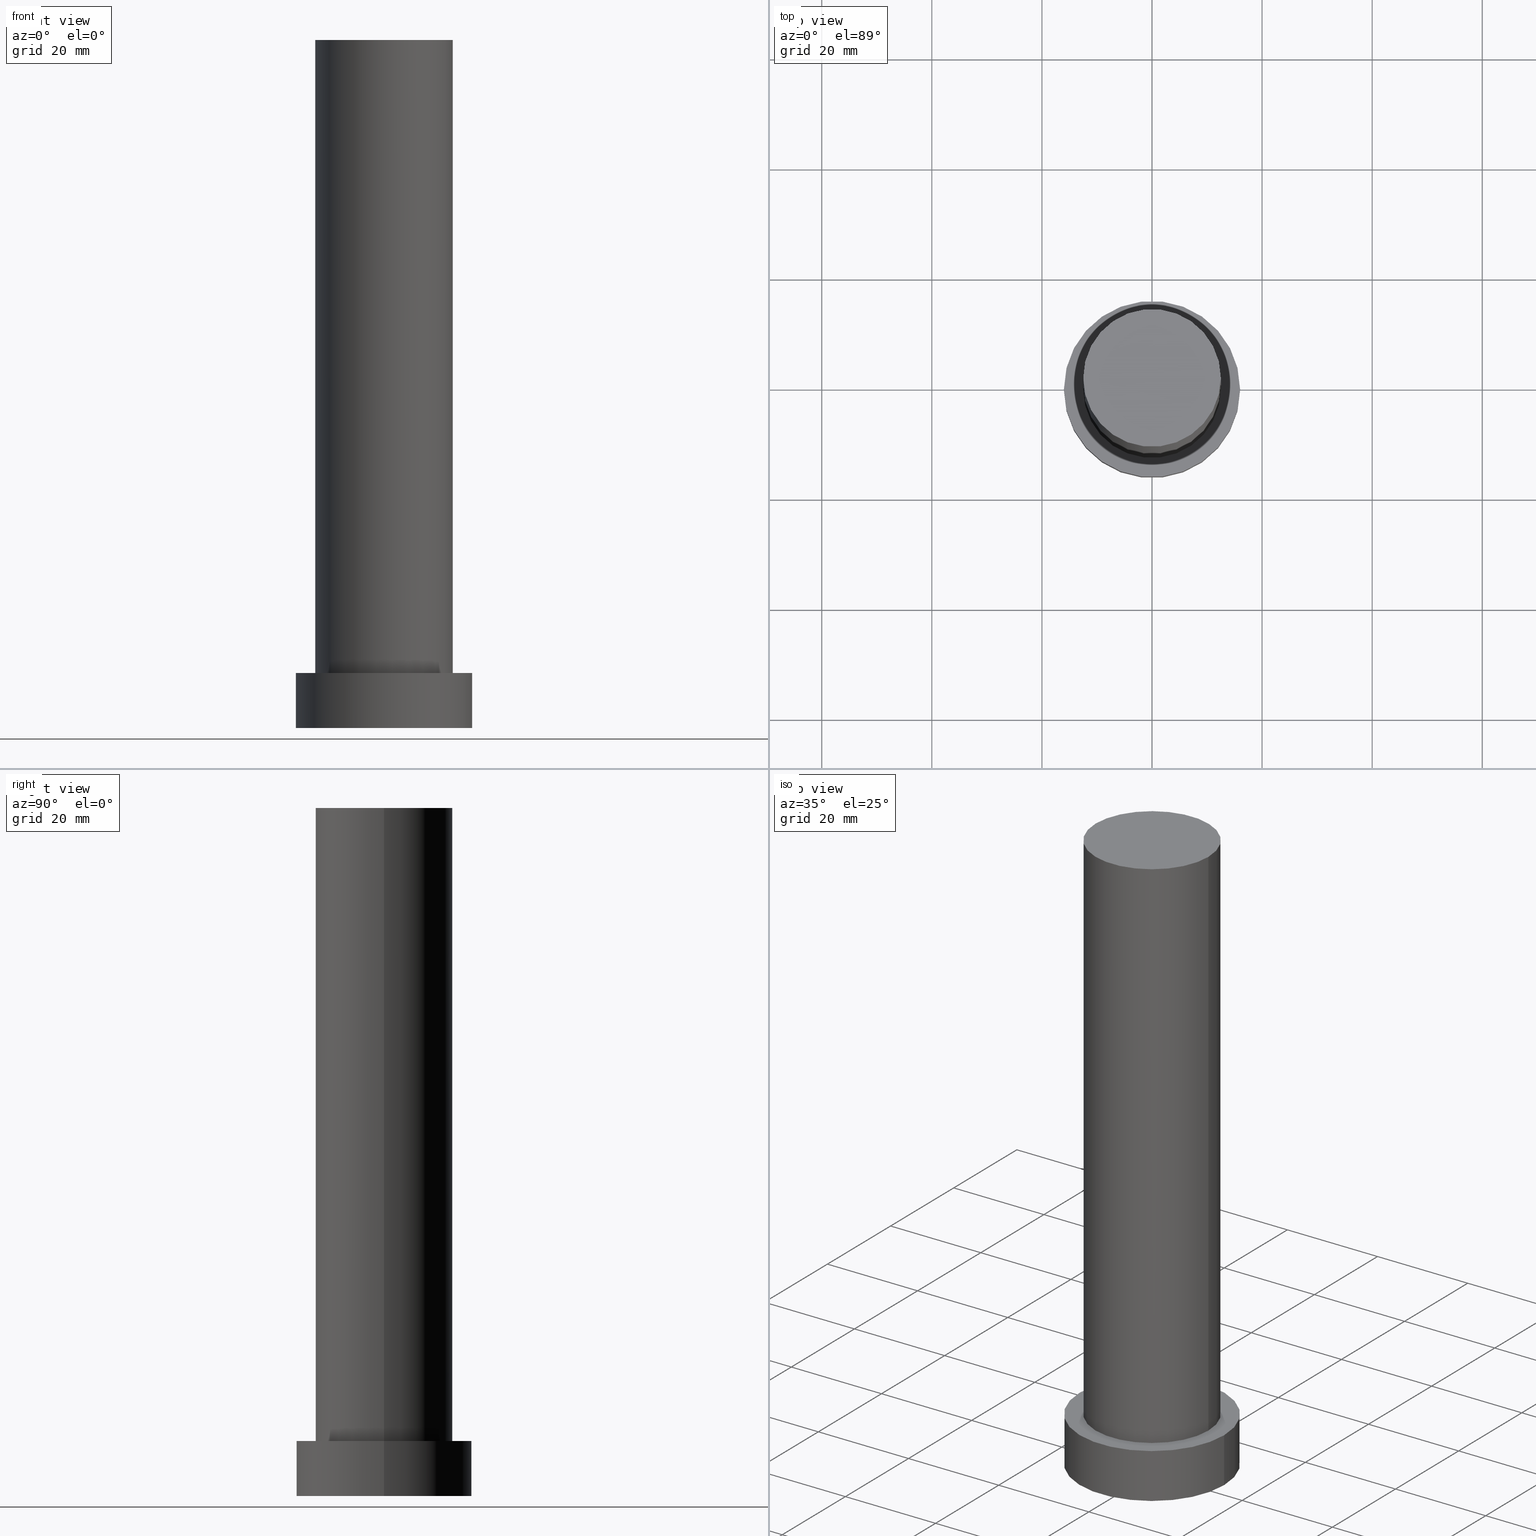
[diagram: canonical four-view strip — front | top / right | iso, engineering-drawing reading convention]
A machine part, canonical four-view strip (front | top / right | iso — engineering-drawing reading convention). The complete STEP part file that produces these views, byte-faithful:
ISO-10303-21;
HEADER;
FILE_DESCRIPTION (( 'STEP AP203' ),
    '1' );
FILE_NAME ('cd83.STEP',
    '2026-02-06T12:35:20',
    ( '' ),
    ( '' ),
    'SwSTEP 2.0',
    'SolidWorks 2019',
    '' );
FILE_SCHEMA (( 'CONFIG_CONTROL_DESIGN' ));
ENDSEC;

DATA;
#1 = PERSON_AND_ORGANIZATION_ROLE ( 'creator' ) ;
#2 = DIRECTION ( 'NONE',  ( -0.000000000000000000, -0.000000000000000000, -1.000000000000000000 ) ) ;
#3 = VECTOR ( 'NONE', #163, 1000.000000000000000 ) ;
#4 = APPROVAL_STATUS ( 'not_yet_approved' ) ;
#5 = EDGE_CURVE ( 'NONE', #189, #245, #173, .T. ) ;
#6 = EDGE_CURVE ( 'NONE', #225, #93, #152, .T. ) ;
#7 = AXIS2_PLACEMENT_3D ( 'NONE', #226, #147, #50 ) ;
#8 = CARTESIAN_POINT ( 'NONE',  ( 0.000000000000000000, 0.000000000000000000, 10.00000000000000000 ) ) ;
#9 = FACE_BOUND ( 'NONE', #143, .T. ) ;
#10 = ORIENTED_EDGE ( 'NONE', *, *, #6, .T. ) ;
#11 = AXIS2_PLACEMENT_3D ( 'NONE', #48, #129, #70 ) ;
#12 = DIRECTION ( 'NONE',  ( -0.000000000000000000, -0.000000000000000000, -1.000000000000000000 ) ) ;
#13 = ADVANCED_FACE ( 'NONE', ( #228 ), #123, .T. ) ;
#14 = EDGE_LOOP ( 'NONE', ( #244, #33, #169, #10 ) ) ;
#15 = ORIENTED_EDGE ( 'NONE', *, *, #67, .T. ) ;
#16 = CARTESIAN_POINT ( 'NONE',  ( 12.50000000000000000, 1.530808498934191521E-15, 10.00000000000000000 ) ) ;
#17 = APPROVAL_DATE_TIME ( #35, #107 ) ;
#18 = CARTESIAN_POINT ( 'NONE',  ( 16.00000000000000000, 1.959434878635765131E-15, 10.00000000000000000 ) ) ;
#19 = PERSON_AND_ORGANIZATION_ROLE ( 'classification_officer' ) ;
#20 = DIRECTION ( 'NONE',  ( 1.000000000000000000, 0.000000000000000000, 0.000000000000000000 ) ) ;
#21 = LOCAL_TIME ( 13, 35, 20.00000000000000000, #235 ) ;
#22 = APPROVAL ( #38, 'NEUR�EN�' ) ;
#23 = DIRECTION ( 'NONE',  ( 0.000000000000000000, 0.000000000000000000, 1.000000000000000000 ) ) ;
#24 = CC_DESIGN_PERSON_AND_ORGANIZATION_ASSIGNMENT ( #44, #197, ( #65 ) ) ;
#25 = CIRCLE ( 'NONE', #116, 12.50000000000000000 ) ;
#26 = CARTESIAN_POINT ( 'NONE',  ( 0.000000000000000000, 0.000000000000000000, 10.00000000000000000 ) ) ;
#27 = DIRECTION ( 'NONE',  ( 1.000000000000000000, 0.000000000000000000, 0.000000000000000000 ) ) ;
#28 = DIRECTION ( 'NONE',  ( 1.000000000000000000, 0.000000000000000000, 0.000000000000000000 ) ) ;
#29 = ORIENTED_EDGE ( 'NONE', *, *, #96, .F. ) ;
#30 = AXIS2_PLACEMENT_3D ( 'NONE', #53, #194, #34 ) ;
#31 = VERTEX_POINT ( 'NONE', #204 ) ;
#32 = ADVANCED_FACE ( 'NONE', ( #9, #88 ), #86, .T. ) ;
#33 = ORIENTED_EDGE ( 'NONE', *, *, #105, .F. ) ;
#34 = DIRECTION ( 'NONE',  ( 1.000000000000000000, 0.000000000000000000, 0.000000000000000000 ) ) ;
#35 = DATE_AND_TIME ( #54, #21 ) ;
#36 = CALENDAR_DATE ( 2026, 6, 2 ) ;
#37 = DIRECTION ( 'NONE',  ( 0.000000000000000000, 0.000000000000000000, 1.000000000000000000 ) ) ;
#38 = APPROVAL_STATUS ( 'not_yet_approved' ) ;
#39 = COORDINATED_UNIVERSAL_TIME_OFFSET ( 1, 0, .AHEAD. ) ;
#40 = CARTESIAN_POINT ( 'NONE',  ( 0.000000000000000000, 0.000000000000000000, 0.000000000000000000 ) ) ;
#41 = CIRCLE ( 'NONE', #217, 16.00000000000000000 ) ;
#42 = COORDINATED_UNIVERSAL_TIME_OFFSET ( 1, 0, .AHEAD. ) ;
#43 = EDGE_CURVE ( 'NONE', #165, #206, #109, .T. ) ;
#44 = PERSON_AND_ORGANIZATION ( #94, #104 ) ;
#45 =( GEOMETRIC_REPRESENTATION_CONTEXT ( 3 ) GLOBAL_UNCERTAINTY_ASSIGNED_CONTEXT ( ( #119 ) ) GLOBAL_UNIT_ASSIGNED_CONTEXT ( ( #239, #218, #84 ) ) REPRESENTATION_CONTEXT ( 'NONE', 'WORKASPACE' ) );
#46 = DIRECTION ( 'NONE',  ( 0.000000000000000000, 0.000000000000000000, 1.000000000000000000 ) ) ;
#47 = VECTOR ( 'NONE', #213, 1000.000000000000000 ) ;
#48 = CARTESIAN_POINT ( 'NONE',  ( 0.000000000000000000, 0.000000000000000000, 10.00000000000000000 ) ) ;
#49 = EDGE_LOOP ( 'NONE', ( #92, #106 ) ) ;
#50 = DIRECTION ( 'NONE',  ( 1.000000000000000000, 0.000000000000000000, 0.000000000000000000 ) ) ;
#51 = CIRCLE ( 'NONE', #160, 16.00000000000000000 ) ;
#52 = CARTESIAN_POINT ( 'NONE',  ( 0.000000000000000000, 0.000000000000000000, 125.0000000000000000 ) ) ;
#53 = CARTESIAN_POINT ( 'NONE',  ( 0.000000000000000000, 0.000000000000000000, 125.0000000000000000 ) ) ;
#54 = CALENDAR_DATE ( 2026, 6, 2 ) ;
#55 = APPLICATION_CONTEXT ( 'configuration controlled 3d designs of mechanical parts and assemblies' ) ;
#56 = LOCAL_TIME ( 13, 35, 20.00000000000000000, #39 ) ;
#57 = COORDINATED_UNIVERSAL_TIME_OFFSET ( 1, 0, .AHEAD. ) ;
#58 = DATE_AND_TIME ( #251, #231 ) ;
#59 = CARTESIAN_POINT ( 'NONE',  ( 0.000000000000000000, 0.000000000000000000, 125.0000000000000000 ) ) ;
#60 = APPLICATION_PROTOCOL_DEFINITION ( 'international standard', 'config_control_design', 1994, #55 ) ;
#61 = CC_DESIGN_SECURITY_CLASSIFICATION ( #63, ( #168 ) ) ;
#62 = CARTESIAN_POINT ( 'NONE',  ( 16.00000000000000000, 1.959434878635765131E-15, 0.000000000000000000 ) ) ;
#63 = SECURITY_CLASSIFICATION ( '', '', #179 ) ;
#64 = EDGE_CURVE ( 'NONE', #206, #165, #41, .T. ) ;
#65 = PRODUCT ( 'cd83', 'cd83', '', ( #138 ) ) ;
#66 = ORIENTED_EDGE ( 'NONE', *, *, #155, .T. ) ;
#67 = EDGE_CURVE ( 'NONE', #245, #189, #51, .T. ) ;
#68 = DIRECTION ( 'NONE',  ( 0.000000000000000000, 0.000000000000000000, 1.000000000000000000 ) ) ;
#69 = CYLINDRICAL_SURFACE ( 'NONE', #211, 16.00000000000000000 ) ;
#70 = DIRECTION ( 'NONE',  ( 1.000000000000000000, 0.000000000000000000, -0.000000000000000000 ) ) ;
#71 = CARTESIAN_POINT ( 'NONE',  ( -16.00000000000000000, 0.000000000000000000, 10.00000000000000000 ) ) ;
#72 = EDGE_LOOP ( 'NONE', ( #240, #73 ) ) ;
#73 = ORIENTED_EDGE ( 'NONE', *, *, #87, .T. ) ;
#74 = APPROVAL_PERSON_ORGANIZATION ( #117, #22, #136 ) ;
#75 = APPROVAL_STATUS ( 'not_yet_approved' ) ;
#76 = DESIGN_CONTEXT ( 'detailed design', #199, 'design' ) ;
#77 = ADVANCED_FACE ( 'NONE', ( #192 ), #250, .T. ) ;
#78 = CARTESIAN_POINT ( 'NONE',  ( 12.50000000000000000, 1.530808498934191521E-15, 125.0000000000000000 ) ) ;
#79 = AXIS2_PLACEMENT_3D ( 'NONE', #40, #37, #91 ) ;
#80 = DIRECTION ( 'NONE',  ( -0.000000000000000000, -0.000000000000000000, -1.000000000000000000 ) ) ;
#81 = APPROVAL_DATE_TIME ( #58, #22 ) ;
#82 = ADVANCED_FACE ( 'NONE', ( #248 ), #154, .T. ) ;
#83 = PERSON_AND_ORGANIZATION ( #94, #104 ) ;
#84 =( NAMED_UNIT ( * ) SI_UNIT ( $, .STERADIAN. ) SOLID_ANGLE_UNIT ( ) );
#85 = CC_DESIGN_DATE_AND_TIME_ASSIGNMENT ( #151, #232, ( #164 ) ) ;
#86 = PLANE ( 'NONE',  #11 ) ;
#87 = EDGE_CURVE ( 'NONE', #31, #145, #137, .T. ) ;
#88 = FACE_OUTER_BOUND ( 'NONE', #49, .T. ) ;
#89 = AXIS2_PLACEMENT_3D ( 'NONE', #219, #23, #181 ) ;
#90 = DIRECTION ( 'NONE',  ( 1.000000000000000000, 0.000000000000000000, 0.000000000000000000 ) ) ;
#91 = DIRECTION ( 'NONE',  ( 1.000000000000000000, 0.000000000000000000, -0.000000000000000000 ) ) ;
#92 = ORIENTED_EDGE ( 'NONE', *, *, #64, .T. ) ;
#93 = VERTEX_POINT ( 'NONE', #16 ) ;
#94 = PERSON ( 'NEUR�EN�', 'NEUR�EN�', 'NEUR�EN�', ('NEUR�EN�'), ('NEUR�EN�'), ('NEUR�EN�') ) ;
#95 = CARTESIAN_POINT ( 'NONE',  ( 0.000000000000000000, 0.000000000000000000, 125.0000000000000000 ) ) ;
#96 = EDGE_CURVE ( 'NONE', #145, #225, #130, .T. ) ;
#97 = CALENDAR_DATE ( 2026, 6, 2 ) ;
#98 = VECTOR ( 'NONE', #150, 1000.000000000000000 ) ;
#99 = PERSON_AND_ORGANIZATION ( #94, #104 ) ;
#100 = DIRECTION ( 'NONE',  ( -1.000000000000000000, 0.000000000000000000, 0.000000000000000000 ) ) ;
#101 = APPLICATION_PROTOCOL_DEFINITION ( 'international standard', 'config_control_design', 1994, #199 ) ;
#102 = LOCAL_TIME ( 13, 35, 20.00000000000000000, #216 ) ;
#103 = CC_DESIGN_PERSON_AND_ORGANIZATION_ASSIGNMENT ( #254, #19, ( #63 ) ) ;
#104 = ORGANIZATION ( 'NEUR�EN�', 'NEUR�EN�', '' ) ;
#105 = EDGE_CURVE ( 'NONE', #145, #31, #25, .T. ) ;
#106 = ORIENTED_EDGE ( 'NONE', *, *, #43, .T. ) ;
#107 = APPROVAL ( #75, 'NEUR�EN�' ) ;
#108 = EDGE_LOOP ( 'NONE', ( #202, #66, #15, #187 ) ) ;
#109 = CIRCLE ( 'NONE', #140, 16.00000000000000000 ) ;
#110 = DIRECTION ( 'NONE',  ( 0.000000000000000000, 0.000000000000000000, 1.000000000000000000 ) ) ;
#111 = CC_DESIGN_PERSON_AND_ORGANIZATION_ASSIGNMENT ( #99, #1, ( #164 ) ) ;
#112 = EDGE_LOOP ( 'NONE', ( #146, #208, #238, #29 ) ) ;
#113 = ORIENTED_EDGE ( 'NONE', *, *, #6, .F. ) ;
#114 = DATE_AND_TIME ( #97, #56 ) ;
#115 = CC_DESIGN_APPROVAL ( #139, ( #164 ) ) ;
#116 = AXIS2_PLACEMENT_3D ( 'NONE', #95, #174, #149 ) ;
#117 = PERSON_AND_ORGANIZATION ( #94, #104 ) ;
#118 = PERSON_AND_ORGANIZATION_ROLE ( 'creator' ) ;
#119 = UNCERTAINTY_MEASURE_WITH_UNIT (LENGTH_MEASURE( 1.000000000000000082E-05 ), #239, 'distance_accuracy_value', 'NONE');
#120 = CC_DESIGN_PERSON_AND_ORGANIZATION_ASSIGNMENT ( #83, #214, ( #168 ) ) ;
#121 = CC_DESIGN_APPROVAL ( #107, ( #63 ) ) ;
#122 = DIRECTION ( 'NONE',  ( 0.000000000000000000, 0.000000000000000000, 1.000000000000000000 ) ) ;
#123 = PLANE ( 'NONE',  #252 ) ;
#124 = DIRECTION ( 'NONE',  ( -0.000000000000000000, -0.000000000000000000, -1.000000000000000000 ) ) ;
#125 = EDGE_LOOP ( 'NONE', ( #190, #141 ) ) ;
#126 = EDGE_CURVE ( 'NONE', #31, #93, #234, .T. ) ;
#127 = APPROVAL_PERSON_ORGANIZATION ( #177, #107, #253 ) ;
#128 = ORIENTED_EDGE ( 'NONE', *, *, #64, .F. ) ;
#129 = DIRECTION ( 'NONE',  ( 0.000000000000000000, 0.000000000000000000, 1.000000000000000000 ) ) ;
#130 = LINE ( 'NONE', #209, #47 ) ;
#131 = DIRECTION ( 'NONE',  ( -1.000000000000000000, 0.000000000000000000, 0.000000000000000000 ) ) ;
#132 = APPROVAL_ROLE ( '' ) ;
#133 = APPROVAL_PERSON_ORGANIZATION ( #182, #139, #132 ) ;
#134 = LINE ( 'NONE', #18, #242 ) ;
#135 = DIRECTION ( 'NONE',  ( 0.000000000000000000, 0.000000000000000000, 1.000000000000000000 ) ) ;
#136 = APPROVAL_ROLE ( '' ) ;
#137 = CIRCLE ( 'NONE', #30, 12.50000000000000000 ) ;
#138 = MECHANICAL_CONTEXT ( 'NONE', #55, 'mechanical' ) ;
#139 = APPROVAL ( #4, 'NEUR�EN�' ) ;
#140 = AXIS2_PLACEMENT_3D ( 'NONE', #200, #110, #27 ) ;
#141 = ORIENTED_EDGE ( 'NONE', *, *, #67, .F. ) ;
#142 = CLOSED_SHELL ( 'NONE', ( #82, #255, #207, #32, #172, #77, #13 ) ) ;
#143 = EDGE_LOOP ( 'NONE', ( #113, #170 ) ) ;
#144 = CARTESIAN_POINT ( 'NONE',  ( 0.000000000000000000, 0.000000000000000000, 10.00000000000000000 ) ) ;
#145 = VERTEX_POINT ( 'NONE', #212 ) ;
#146 = ORIENTED_EDGE ( 'NONE', *, *, #87, .F. ) ;
#147 = DIRECTION ( 'NONE',  ( 0.000000000000000000, 0.000000000000000000, 1.000000000000000000 ) ) ;
#148 = DIRECTION ( 'NONE',  ( -0.000000000000000000, -0.000000000000000000, -1.000000000000000000 ) ) ;
#149 = DIRECTION ( 'NONE',  ( 1.000000000000000000, 0.000000000000000000, 0.000000000000000000 ) ) ;
#150 = DIRECTION ( 'NONE',  ( -0.000000000000000000, -0.000000000000000000, -1.000000000000000000 ) ) ;
#151 = DATE_AND_TIME ( #193, #102 ) ;
#152 = CIRCLE ( 'NONE', #7, 12.50000000000000000 ) ;
#153 = CARTESIAN_POINT ( 'NONE',  ( -16.00000000000000000, 0.000000000000000000, 0.000000000000000000 ) ) ;
#154 = CYLINDRICAL_SURFACE ( 'NONE', #223, 12.50000000000000000 ) ;
#155 = EDGE_CURVE ( 'NONE', #165, #245, #134, .T. ) ;
#156 = LINE ( 'NONE', #159, #3 ) ;
#157 = PRODUCT_RELATED_PRODUCT_CATEGORY ( 'detail', '', ( #65 ) ) ;
#158 = DATE_TIME_ROLE ( 'classification_date' ) ;
#159 = CARTESIAN_POINT ( 'NONE',  ( -16.00000000000000000, 0.000000000000000000, 10.00000000000000000 ) ) ;
#160 = AXIS2_PLACEMENT_3D ( 'NONE', #241, #68, #175 ) ;
#161 = CARTESIAN_POINT ( 'NONE',  ( -12.50000000000000000, 0.000000000000000000, 10.00000000000000000 ) ) ;
#162 = ORIENTED_EDGE ( 'NONE', *, *, #155, .F. ) ;
#163 = DIRECTION ( 'NONE',  ( -0.000000000000000000, -0.000000000000000000, -1.000000000000000000 ) ) ;
#164 = PRODUCT_DEFINITION ( 'NEZN�M�', '', #168, #76 ) ;
#165 = VERTEX_POINT ( 'NONE', #167 ) ;
#166 = DIRECTION ( 'NONE',  ( 0.000000000000000000, 0.000000000000000000, 1.000000000000000000 ) ) ;
#167 = CARTESIAN_POINT ( 'NONE',  ( 16.00000000000000000, 1.959434878635765131E-15, 10.00000000000000000 ) ) ;
#168 = PRODUCT_DEFINITION_FORMATION_WITH_SPECIFIED_SOURCE ( 'LIBOVOLN�', '', #65, .NOT_KNOWN. ) ;
#169 = ORIENTED_EDGE ( 'NONE', *, *, #96, .T. ) ;
#170 = ORIENTED_EDGE ( 'NONE', *, *, #201, .F. ) ;
#171 = EDGE_LOOP ( 'NONE', ( #162, #128, #222, #186 ) ) ;
#172 = ADVANCED_FACE ( 'NONE', ( #249 ), #176, .F. ) ;
#173 = CIRCLE ( 'NONE', #205, 16.00000000000000000 ) ;
#174 = DIRECTION ( 'NONE',  ( 0.000000000000000000, 0.000000000000000000, 1.000000000000000000 ) ) ;
#175 = DIRECTION ( 'NONE',  ( 1.000000000000000000, 0.000000000000000000, 0.000000000000000000 ) ) ;
#176 = PLANE ( 'NONE',  #79 ) ;
#177 = PERSON_AND_ORGANIZATION ( #94, #104 ) ;
#178 = CC_DESIGN_APPROVAL ( #22, ( #168 ) ) ;
#179 = SECURITY_CLASSIFICATION_LEVEL ( 'unclassified' ) ;
#180 = APPROVAL_DATE_TIME ( #195, #139 ) ;
#181 = DIRECTION ( 'NONE',  ( 1.000000000000000000, 0.000000000000000000, 0.000000000000000000 ) ) ;
#182 = PERSON_AND_ORGANIZATION ( #94, #104 ) ;
#183 = LOCAL_TIME ( 13, 35, 20.00000000000000000, #57 ) ;
#184 = AXIS2_PLACEMENT_3D ( 'NONE', #26, #2, #100 ) ;
#185 = MANIFOLD_SOLID_BREP ( 'P�idat vysunut�m3', #142 ) ;
#186 = ORIENTED_EDGE ( 'NONE', *, *, #5, .T. ) ;
#187 = ORIENTED_EDGE ( 'NONE', *, *, #221, .F. ) ;
#188 = PRODUCT_DEFINITION_SHAPE ( 'NONE', 'NONE',  #164 ) ;
#189 = VERTEX_POINT ( 'NONE', #153 ) ;
#190 = ORIENTED_EDGE ( 'NONE', *, *, #5, .F. ) ;
#191 = AXIS2_PLACEMENT_3D ( 'NONE', #233, #135, #20 ) ;
#192 = FACE_OUTER_BOUND ( 'NONE', #14, .T. ) ;
#193 = CALENDAR_DATE ( 2026, 6, 2 ) ;
#194 = DIRECTION ( 'NONE',  ( 0.000000000000000000, 0.000000000000000000, 1.000000000000000000 ) ) ;
#195 = DATE_AND_TIME ( #36, #183 ) ;
#196 = ADVANCED_BREP_SHAPE_REPRESENTATION ( 'cd83', ( #185, #89 ), #45 ) ;
#197 = PERSON_AND_ORGANIZATION_ROLE ( 'design_owner' ) ;
#198 = CYLINDRICAL_SURFACE ( 'NONE', #184, 16.00000000000000000 ) ;
#199 = APPLICATION_CONTEXT ( 'configuration controlled 3d designs of mechanical parts and assemblies' ) ;
#200 = CARTESIAN_POINT ( 'NONE',  ( 0.000000000000000000, 0.000000000000000000, 10.00000000000000000 ) ) ;
#201 = EDGE_CURVE ( 'NONE', #93, #225, #247, .T. ) ;
#202 = ORIENTED_EDGE ( 'NONE', *, *, #43, .F. ) ;
#203 = DIRECTION ( 'NONE',  ( -1.000000000000000000, 0.000000000000000000, 0.000000000000000000 ) ) ;
#204 = CARTESIAN_POINT ( 'NONE',  ( 12.50000000000000000, 1.530808498934191521E-15, 125.0000000000000000 ) ) ;
#205 = AXIS2_PLACEMENT_3D ( 'NONE', #246, #46, #90 ) ;
#206 = VERTEX_POINT ( 'NONE', #71 ) ;
#207 = ADVANCED_FACE ( 'NONE', ( #243 ), #69, .T. ) ;
#208 = ORIENTED_EDGE ( 'NONE', *, *, #126, .T. ) ;
#209 = CARTESIAN_POINT ( 'NONE',  ( -12.50000000000000000, 0.000000000000000000, 125.0000000000000000 ) ) ;
#210 = PERSON_AND_ORGANIZATION ( #94, #104 ) ;
#211 = AXIS2_PLACEMENT_3D ( 'NONE', #144, #124, #203 ) ;
#212 = CARTESIAN_POINT ( 'NONE',  ( -12.50000000000000000, 0.000000000000000000, 125.0000000000000000 ) ) ;
#213 = DIRECTION ( 'NONE',  ( -0.000000000000000000, -0.000000000000000000, -1.000000000000000000 ) ) ;
#214 = PERSON_AND_ORGANIZATION_ROLE ( 'design_supplier' ) ;
#215 = SHAPE_DEFINITION_REPRESENTATION ( #188, #196 ) ;
#216 = COORDINATED_UNIVERSAL_TIME_OFFSET ( 1, 0, .AHEAD. ) ;
#217 = AXIS2_PLACEMENT_3D ( 'NONE', #8, #166, #28 ) ;
#218 =( NAMED_UNIT ( * ) PLANE_ANGLE_UNIT ( ) SI_UNIT ( $, .RADIAN. ) );
#219 = CARTESIAN_POINT ( 'NONE',  ( 0.000000000000000000, 0.000000000000000000, 0.000000000000000000 ) ) ;
#220 = AXIS2_PLACEMENT_3D ( 'NONE', #236, #80, #131 ) ;
#221 = EDGE_CURVE ( 'NONE', #206, #189, #156, .T. ) ;
#222 = ORIENTED_EDGE ( 'NONE', *, *, #221, .T. ) ;
#223 = AXIS2_PLACEMENT_3D ( 'NONE', #59, #148, #230 ) ;
#224 = DIRECTION ( 'NONE',  ( 1.000000000000000000, 0.000000000000000000, -0.000000000000000000 ) ) ;
#225 = VERTEX_POINT ( 'NONE', #161 ) ;
#226 = CARTESIAN_POINT ( 'NONE',  ( 0.000000000000000000, 0.000000000000000000, 10.00000000000000000 ) ) ;
#227 = CC_DESIGN_PERSON_AND_ORGANIZATION_ASSIGNMENT ( #210, #118, ( #168 ) ) ;
#228 = FACE_OUTER_BOUND ( 'NONE', #72, .T. ) ;
#229 = CC_DESIGN_DATE_AND_TIME_ASSIGNMENT ( #114, #158, ( #63 ) ) ;
#230 = DIRECTION ( 'NONE',  ( -1.000000000000000000, 0.000000000000000000, 0.000000000000000000 ) ) ;
#231 = LOCAL_TIME ( 13, 35, 20.00000000000000000, #42 ) ;
#232 = DATE_TIME_ROLE ( 'creation_date' ) ;
#233 = CARTESIAN_POINT ( 'NONE',  ( 0.000000000000000000, 0.000000000000000000, 10.00000000000000000 ) ) ;
#234 = LINE ( 'NONE', #78, #98 ) ;
#235 = COORDINATED_UNIVERSAL_TIME_OFFSET ( 1, 0, .AHEAD. ) ;
#236 = CARTESIAN_POINT ( 'NONE',  ( 0.000000000000000000, 0.000000000000000000, 125.0000000000000000 ) ) ;
#237 = FACE_OUTER_BOUND ( 'NONE', #108, .T. ) ;
#238 = ORIENTED_EDGE ( 'NONE', *, *, #201, .T. ) ;
#239 =( LENGTH_UNIT ( ) NAMED_UNIT ( * ) SI_UNIT ( .MILLI., .METRE. ) );
#240 = ORIENTED_EDGE ( 'NONE', *, *, #105, .T. ) ;
#241 = CARTESIAN_POINT ( 'NONE',  ( 0.000000000000000000, 0.000000000000000000, 0.000000000000000000 ) ) ;
#242 = VECTOR ( 'NONE', #12, 1000.000000000000000 ) ;
#243 = FACE_OUTER_BOUND ( 'NONE', #171, .T. ) ;
#244 = ORIENTED_EDGE ( 'NONE', *, *, #126, .F. ) ;
#245 = VERTEX_POINT ( 'NONE', #62 ) ;
#246 = CARTESIAN_POINT ( 'NONE',  ( 0.000000000000000000, 0.000000000000000000, 0.000000000000000000 ) ) ;
#247 = CIRCLE ( 'NONE', #191, 12.50000000000000000 ) ;
#248 = FACE_OUTER_BOUND ( 'NONE', #112, .T. ) ;
#249 = FACE_OUTER_BOUND ( 'NONE', #125, .T. ) ;
#250 = CYLINDRICAL_SURFACE ( 'NONE', #220, 12.50000000000000000 ) ;
#251 = CALENDAR_DATE ( 2026, 6, 2 ) ;
#252 = AXIS2_PLACEMENT_3D ( 'NONE', #52, #122, #224 ) ;
#253 = APPROVAL_ROLE ( '' ) ;
#254 = PERSON_AND_ORGANIZATION ( #94, #104 ) ;
#255 = ADVANCED_FACE ( 'NONE', ( #237 ), #198, .T. ) ;
ENDSEC;
END-ISO-10303-21;
